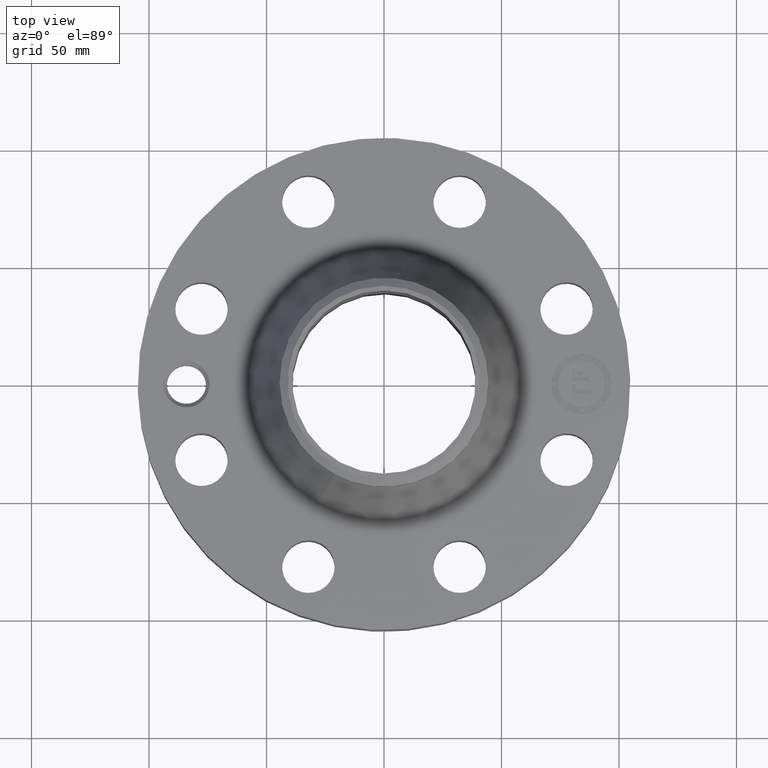
[diagram: clean part render]
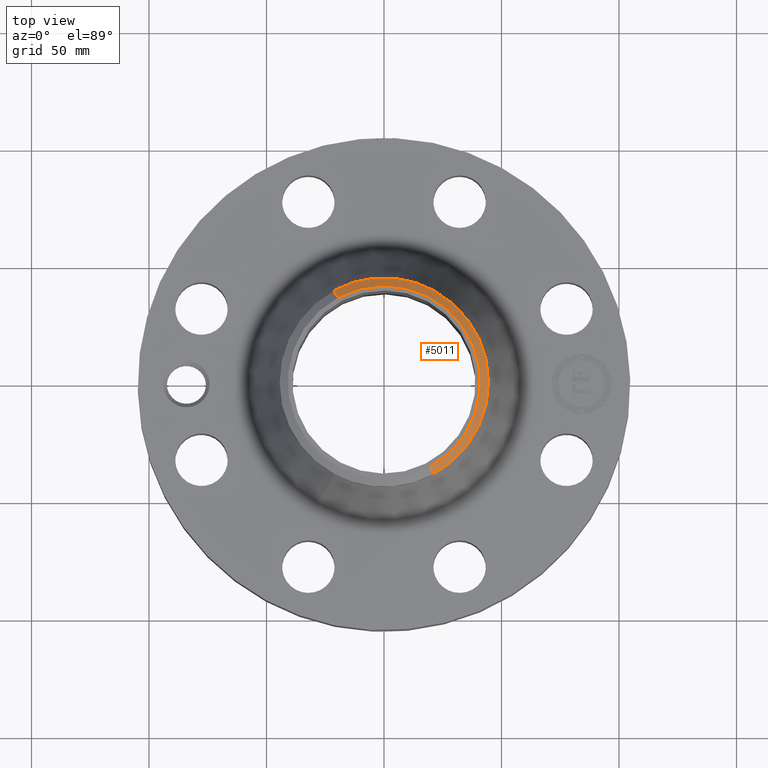
[diagram: same view with one face highlighted and labeled with its STEP entity id]
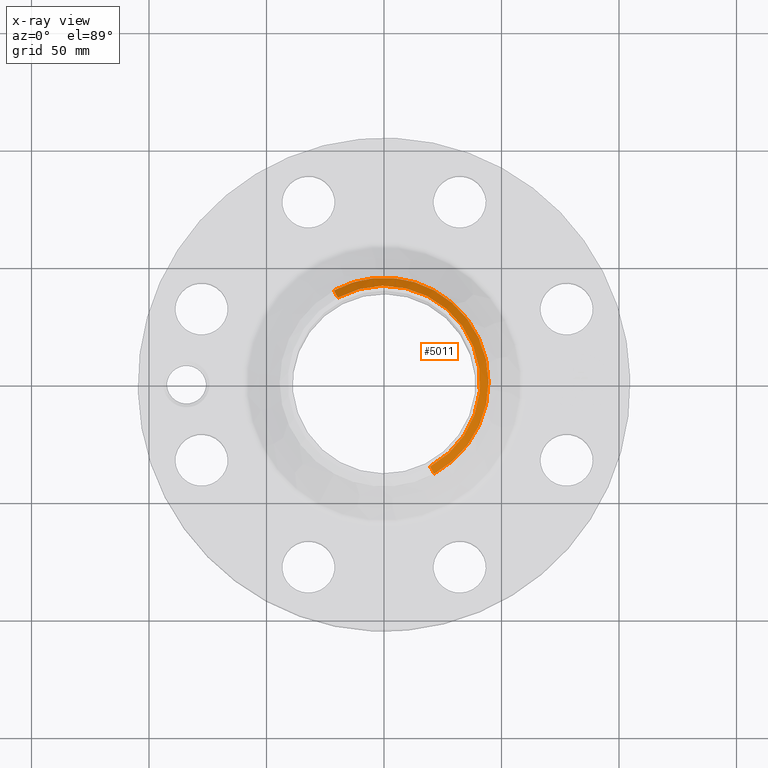
[diagram: x-ray of the same camera — body ghosted, the highlighted face saturated]
A machine part, top view. The second image highlights one B-rep face of the part: STEP entity #5011.
The next image is the same camera in x-ray: the body ghosted, the highlighted face saturated — about 0% of this face is hidden behind the body in this view.
In plain terms, the highlighted conical surface has half-angle 52.5 deg.
Its self-contained STEP definition (entity closure, byte-faithful):
#3731=AXIS2_PLACEMENT_3D('Circle Axis2P3D',#3729,#3730,$) ;
#3758=AXIS2_PLACEMENT_3D('Circle Axis2P3D',#3756,#3757,$) ;
#4584=AXIS2_PLACEMENT_3D('Circle Axis2P3D',#4582,#4583,$) ;
#4992=AXIS2_PLACEMENT_3D('Cone Axis2P3D',#4989,#4990,#4991) ;
#3726=CARTESIAN_POINT('Vertex',(0.838994692561,1.53576948331,3.64467681848)) ;
#3729=CARTESIAN_POINT('Axis2P3D Location',(0.,0.,3.64467681848)) ;
#3733=CARTESIAN_POINT('Vertex',(0.838994692561,-1.53576948331,3.64467681848)) ;
#3753=CARTESIAN_POINT('Vertex',(-0.838994692561,1.53576948331,3.64467681848)) ;
#3756=CARTESIAN_POINT('Axis2P3D Location',(0.,0.,3.64467681848)) ;
#4582=CARTESIAN_POINT('Axis2P3D Location',(0.,0.,3.75000000002)) ;
#4586=CARTESIAN_POINT('Vertex',(0.773188818632,-1.41531263907,3.75000000002)) ;
#4588=CARTESIAN_POINT('Vertex',(-0.773188818632,1.41531263907,3.75000000002)) ;
#4989=CARTESIAN_POINT('Axis2P3D Location',(0.,0.,3.75000000002)) ;
#4994=CARTESIAN_POINT('Line Origine',(-0.806091755596,1.47554106119,3.69733840925)) ;
#4999=CARTESIAN_POINT('Line Origine',(0.806091755596,-1.47554106119,3.69733840925)) ;
#3730=DIRECTION('Axis2P3D Direction',(0.,0.,-0.0393700787402)) ;
#3757=DIRECTION('Axis2P3D Direction',(0.,0.,-0.0393700787402)) ;
#4583=DIRECTION('Axis2P3D Direction',(0.,0.,-0.0393700787402)) ;
#4990=DIRECTION('Axis2P3D Direction',(-0.,-0.,-0.0393700787402)) ;
#4991=DIRECTION('Axis2P3D XDirection',(0.0188750212049,-0.0345504945626,0.)) ;
#4995=DIRECTION('Vector Direction',(-0.014974561121,0.02741075027,-0.023966985394)) ;
#5000=DIRECTION('Vector Direction',(0.014974561121,-0.02741075027,-0.023966985394)) ;
#4996=VECTOR('Line Direction',#4995,0.0393700787402) ;
#5001=VECTOR('Line Direction',#5000,0.0393700787402) ;
#5005=ORIENTED_EDGE('',*,*,#4998,.F.) ;
#5006=ORIENTED_EDGE('',*,*,#4590,.F.) ;
#5007=ORIENTED_EDGE('',*,*,#5003,.T.) ;
#5008=ORIENTED_EDGE('',*,*,#3735,.T.) ;
#5009=ORIENTED_EDGE('',*,*,#3760,.F.) ;
#5011=ADVANCED_FACE('PartBody',(#5010),#4993,.T.) ;
#3732=CIRCLE('generated circle',#3731,1.75000000001) ;
#3759=CIRCLE('generated circle',#3758,1.75000000001) ;
#4585=CIRCLE('generated circle',#4584,1.61274015749) ;
#4993=CONICAL_SURFACE('Cone',#4992,1.61274015749,0.916297857297) ;
#3735=EDGE_CURVE('',#3734,#3727,#3732,.F.) ;
#3760=EDGE_CURVE('',#3754,#3727,#3759,.T.) ;
#4590=EDGE_CURVE('',#4587,#4589,#4585,.F.) ;
#4998=EDGE_CURVE('',#4589,#3754,#4997,.T.) ;
#5003=EDGE_CURVE('',#4587,#3734,#5002,.T.) ;
#5004=EDGE_LOOP('',(#5005,#5006,#5007,#5008,#5009)) ;
#5010=FACE_OUTER_BOUND('',#5004,.T.) ;
#4997=LINE('Line',#4994,#4996) ;
#5002=LINE('Line',#4999,#5001) ;
#3727=VERTEX_POINT('',#3726) ;
#3734=VERTEX_POINT('',#3733) ;
#3754=VERTEX_POINT('',#3753) ;
#4587=VERTEX_POINT('',#4586) ;
#4589=VERTEX_POINT('',#4588) ;